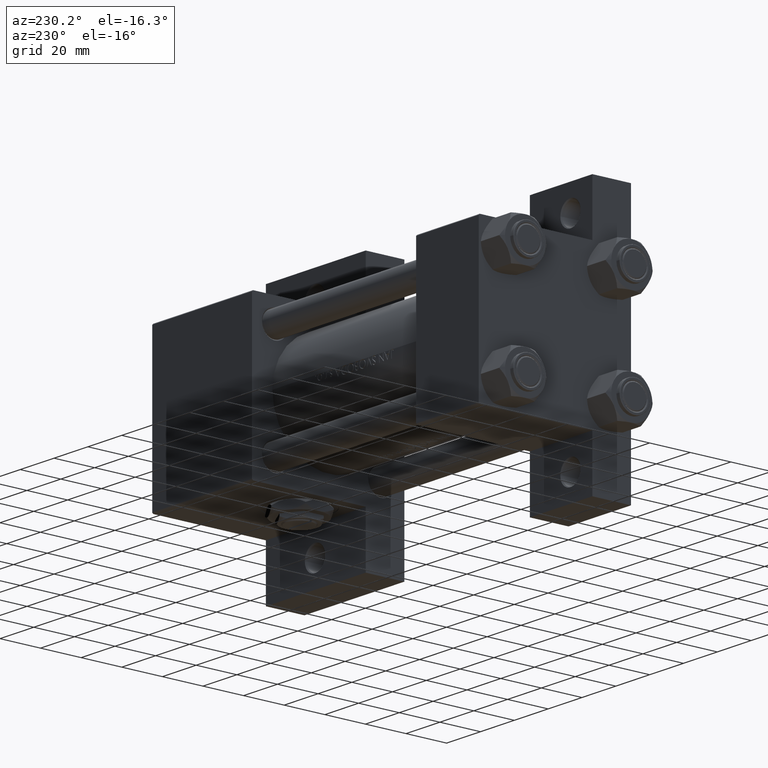
[diagram: clean part render]
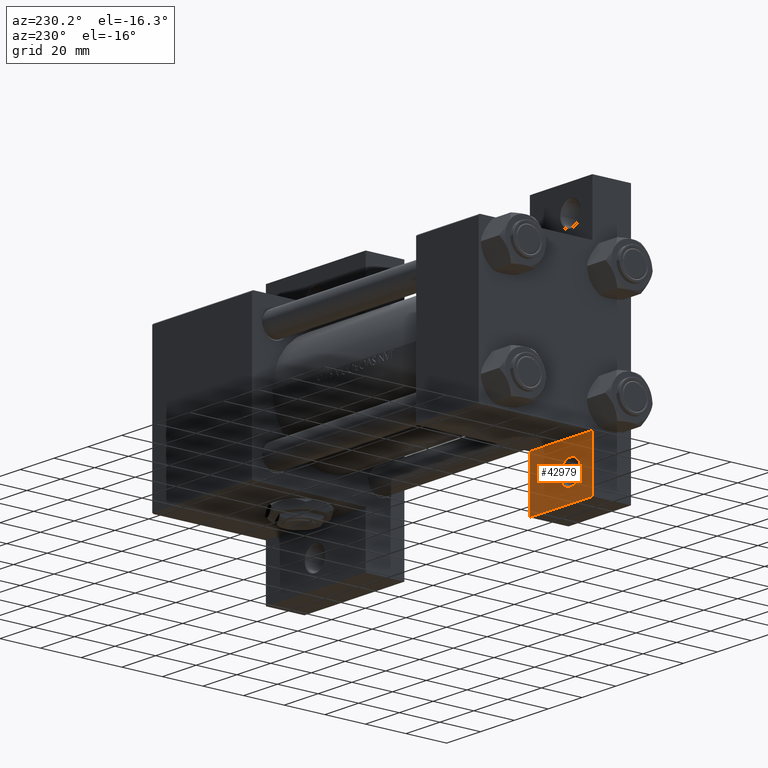
[diagram: same view with one face highlighted and labeled with its STEP entity id]
A machine part, auxiliary view. The second image highlights one B-rep face of the part: STEP entity #42979.
In plain terms, the highlighted planar face has unit normal (0, -1, 0).
Its self-contained STEP definition (entity closure, byte-faithful):
#436 = CARTESIAN_POINT ( 'NONE',  ( 0.000000000000000000, 0.000000000000000000, -18.50000000000000000 ) ) ;
#692 = AXIS2_PLACEMENT_3D ( 'NONE', #436, #4677, #8899 ) ;
#1505 = EDGE_CURVE ( 'NONE', #36120, #24637, #16211, .T. ) ;
#2453 = DIRECTION ( 'NONE',  ( 2.668805347656626678E-16, 1.000000000000000000, 0.000000000000000000 ) ) ;
#4270 = EDGE_CURVE ( 'NONE', #24637, #34247, #44030, .T. ) ;
#4555 = CARTESIAN_POINT ( 'NONE',  ( 0.000000000000000000, 37.49999999999999289, -18.49999999999999645 ) ) ;
#4677 = DIRECTION ( 'NONE',  ( 0.000000000000000000, 0.000000000000000000, -1.000000000000000000 ) ) ;
#5963 = CARTESIAN_POINT ( 'NONE',  ( 37.00000000000001421, 63.50000000000001421, -18.50000000000000355 ) ) ;
#6569 = CARTESIAN_POINT ( 'NONE',  ( 37.00000000000001421, 63.50000000000000000, -18.50000000000000355 ) ) ;
#7998 = EDGE_LOOP ( 'NONE', ( #8587, #37002 ) ) ;
#8329 = ORIENTED_EDGE ( 'NONE', *, *, #37676, .T. ) ;
#8587 = ORIENTED_EDGE ( 'NONE', *, *, #28450, .T. ) ;
#8899 = DIRECTION ( 'NONE',  ( -1.000000000000000000, 0.000000000000000000, -0.000000000000000000 ) ) ;
#10184 = LINE ( 'NONE', #5963, #34821 ) ;
#10275 = VERTEX_POINT ( 'NONE', #29440 ) ;
#10876 = VECTOR ( 'NONE', #46502, 1000.000000000000000 ) ;
#11543 = AXIS2_PLACEMENT_3D ( 'NONE', #37916, #33946, #14996 ) ;
#14929 = VERTEX_POINT ( 'NONE', #6569 ) ;
#14996 = DIRECTION ( 'NONE',  ( -1.000000000000000000, 0.000000000000000000, 0.000000000000000000 ) ) ;
#16211 = LINE ( 'NONE', #16705, #20991 ) ;
#16272 = VECTOR ( 'NONE', #33077, 1000.000000000000000 ) ;
#16705 = CARTESIAN_POINT ( 'NONE',  ( 1.595073532467135757E-14, 63.50000000000001421, -18.50000000000000355 ) ) ;
#18510 = CARTESIAN_POINT ( 'NONE',  ( 37.00000000000000711, 37.50000000000000711, -18.50000000000000355 ) ) ;
#20991 = VECTOR ( 'NONE', #35421, 1000.000000000000000 ) ;
#22697 = CARTESIAN_POINT ( 'NONE',  ( 12.99999999999999822, 50.99999999999999289, -18.50000000000000000 ) ) ;
#23487 = CARTESIAN_POINT ( 'NONE',  ( 1.595073532467135441E-14, 63.50000000000000000, -18.50000000000000355 ) ) ;
#24117 = CARTESIAN_POINT ( 'NONE',  ( 1.595073532467135441E-14, 63.50000000000000000, -18.50000000000000355 ) ) ;
#24637 = VERTEX_POINT ( 'NONE', #4555 ) ;
#24687 = CIRCLE ( 'NONE', #42175, 5.999500000000105082 ) ;
#27095 = PLANE ( 'NONE',  #692 ) ;
#28450 = EDGE_CURVE ( 'NONE', #10275, #45736, #35419, .T. ) ;
#28464 = EDGE_LOOP ( 'NONE', ( #47326, #29167, #32969, #8329 ) ) ;
#29167 = ORIENTED_EDGE ( 'NONE', *, *, #4270, .T. ) ;
#29440 = CARTESIAN_POINT ( 'NONE',  ( 18.99950000000010419, 50.99999999999999289, -18.50000000000000000 ) ) ;
#32824 = CARTESIAN_POINT ( 'NONE',  ( 8.470280871287256020E-15, 37.50000000000002842, -18.49999999999999645 ) ) ;
#32969 = ORIENTED_EDGE ( 'NONE', *, *, #40610, .T. ) ;
#33077 = DIRECTION ( 'NONE',  ( 1.000000000000000000, -3.750753461571474945E-16, 0.000000000000000000 ) ) ;
#33946 = DIRECTION ( 'NONE',  ( 0.000000000000000000, 0.000000000000000000, -1.000000000000000000 ) ) ;
#34247 = VERTEX_POINT ( 'NONE', #18510 ) ;
#34583 = FACE_BOUND ( 'NONE', #7998, .T. ) ;
#34821 = VECTOR ( 'NONE', #2453, 1000.000000000000000 ) ;
#35419 = CIRCLE ( 'NONE', #11543, 5.999500000000105082 ) ;
#35421 = DIRECTION ( 'NONE',  ( -2.877097866686192789E-16, -1.000000000000000000, 0.000000000000000000 ) ) ;
#36120 = VERTEX_POINT ( 'NONE', #23487 ) ;
#37002 = ORIENTED_EDGE ( 'NONE', *, *, #46285, .T. ) ;
#37676 = EDGE_CURVE ( 'NONE', #14929, #36120, #39299, .T. ) ;
#37916 = CARTESIAN_POINT ( 'NONE',  ( 12.99999999999999822, 50.99999999999999289, -18.50000000000000000 ) ) ;
#39299 = LINE ( 'NONE', #24117, #10876 ) ;
#40610 = EDGE_CURVE ( 'NONE', #34247, #14929, #10184, .T. ) ;
#41133 = DIRECTION ( 'NONE',  ( 0.000000000000000000, 0.000000000000000000, -1.000000000000000000 ) ) ;
#41632 = DIRECTION ( 'NONE',  ( -1.000000000000000000, 0.000000000000000000, 0.000000000000000000 ) ) ;
#42175 = AXIS2_PLACEMENT_3D ( 'NONE', #22697, #41133, #41632 ) ;
#42979 = ADVANCED_FACE ( 'NONE', ( #34583, #43029 ), #27095, .F. ) ;
#43029 = FACE_OUTER_BOUND ( 'NONE', #28464, .T. ) ;
#43701 = CARTESIAN_POINT ( 'NONE',  ( 7.000499999999892253, 50.99999999999999289, -18.50000000000000000 ) ) ;
#44030 = LINE ( 'NONE', #32824, #16272 ) ;
#45736 = VERTEX_POINT ( 'NONE', #43701 ) ;
#46285 = EDGE_CURVE ( 'NONE', #45736, #10275, #24687, .T. ) ;
#46502 = DIRECTION ( 'NONE',  ( -1.000000000000000000, 0.000000000000000000, 0.000000000000000000 ) ) ;
#47326 = ORIENTED_EDGE ( 'NONE', *, *, #1505, .T. ) ;